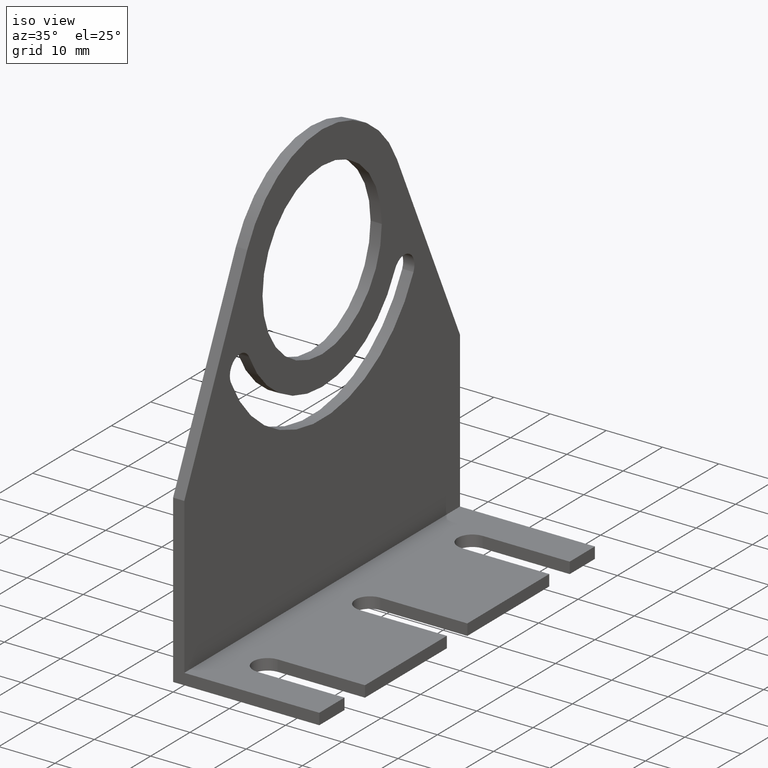
[diagram: clean part render]
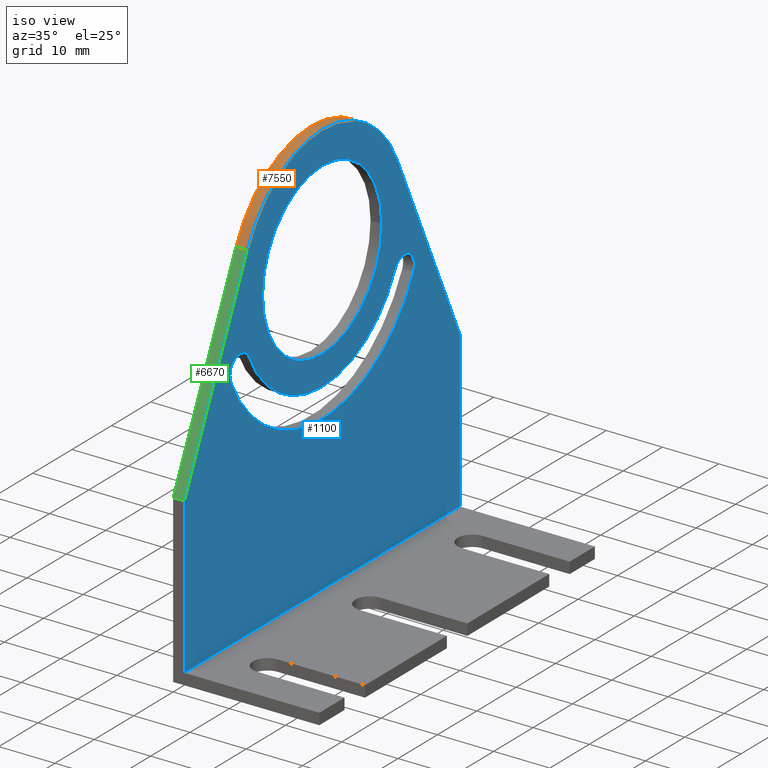
[diagram: same view with three faces highlighted in distinct colors, each labeled with its STEP entity id]
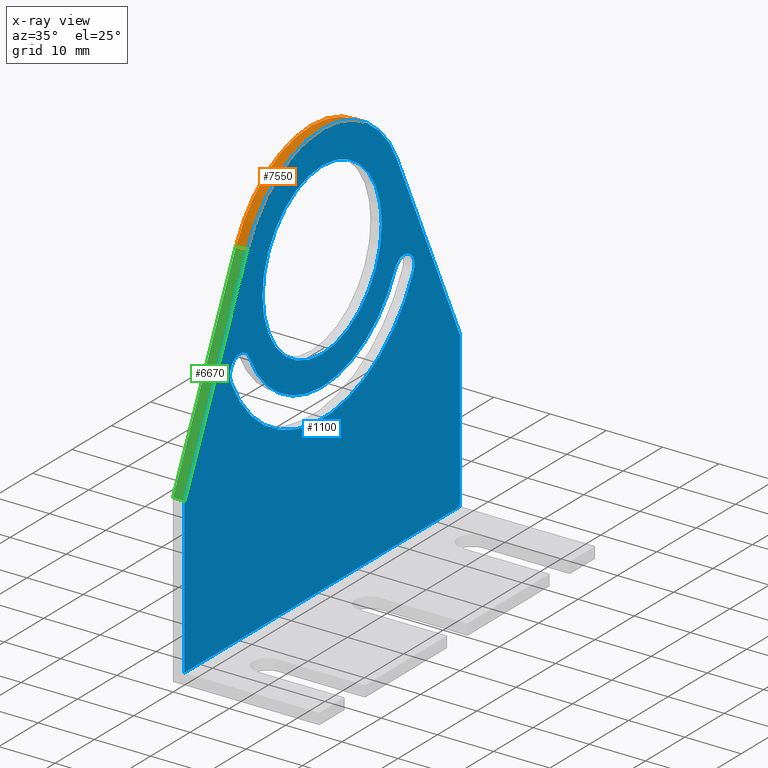
[diagram: x-ray of the same camera — body ghosted, the three highlighted faces saturated]
A machine part, iso view with three faces highlighted in distinct colors.
The next image is the same camera in x-ray (body ghosted, the three faces saturated) — at least one of them is partly hidden behind the body in this view.
Their STEP definitions:

[orange] entity #7550 — the highlighted cylindrical surface (partial cylindrical patch) has radius 21 mm, axis along (-1, 0, 0).
#590=CARTESIAN_POINT('',(0.,0.,2.));
#600=DIRECTION('',(0.,0.,1.));
#610=DIRECTION('',(0.906307787036637,0.422618261740727,0.));
#620=AXIS2_PLACEMENT_3D('',#590,#600,#610);
#630=CIRCLE('',#620,21.);
#640=CARTESIAN_POINT('',(19.0324635277695,8.87498349655499,2.));
#650=VERTEX_POINT('',#640);
#660=CARTESIAN_POINT('',(-19.0324635277694,8.87498349655527,2.));
#670=VERTEX_POINT('',#660);
#680=EDGE_CURVE('',#650,#670,#630,.T.);
#2270=CARTESIAN_POINT('',(19.0324635277695,8.87498349655499,0.));
#2280=VERTEX_POINT('',#2270);
#2310=CARTESIAN_POINT('',(0.,0.,0.));
#2320=DIRECTION('',(0.,0.,-1.));
#2330=DIRECTION('',(-0.906307787036624,0.422618261740756,0.));
#2340=AXIS2_PLACEMENT_3D('',#2310,#2320,#2330);
#2350=CIRCLE('',#2340,21.);
#2360=CARTESIAN_POINT('',(-19.0324635277694,8.87498349655527,0.));
#2370=VERTEX_POINT('',#2360);
#2380=EDGE_CURVE('',#2370,#2280,#2350,.T.);
#5160=CARTESIAN_POINT('',(19.0324635277696,8.8749834965547,2.));
#5170=DIRECTION('',(0.,0.,-1.));
#5180=VECTOR('',#5170,1.);
#5190=LINE('',#5160,#5180);
#5200=EDGE_CURVE('',#650,#2280,#5190,.T.);
#6560=CARTESIAN_POINT('',(-19.0324635277697,8.87498349655467,0.));
#6570=DIRECTION('',(0.,0.,1.));
#6580=VECTOR('',#6570,1.);
#6590=LINE('',#6560,#6580);
#6600=EDGE_CURVE('',#2370,#670,#6590,.T.);
#7440=CARTESIAN_POINT('',(0.,0.,2.));
#7450=DIRECTION('',(0.,0.,-1.));
#7460=DIRECTION('',(-1.,0.,0.));
#7470=AXIS2_PLACEMENT_3D('',#7440,#7450,#7460);
#7480=CYLINDRICAL_SURFACE('',#7470,21.);
#7490=ORIENTED_EDGE('',*,*,#5200,.T.);
#7500=ORIENTED_EDGE('',*,*,#680,.F.);
#7510=ORIENTED_EDGE('',*,*,#6600,.T.);
#7520=ORIENTED_EDGE('',*,*,#2380,.F.);
#7530=EDGE_LOOP('',(#7520,#7510,#7500,#7490));
#7540=FACE_OUTER_BOUND('',#7530,.T.);
#7550=ADVANCED_FACE('',(#7540),#7480,.T.);

[blue] entity #1100 — the highlighted planar face has unit normal (-1, 0, 0).
#10=CARTESIAN_POINT('',(0.,0.,2.));
#20=DIRECTION('',(0.,0.,-1.));
#30=DIRECTION('',(-1.,0.,0.));
#40=AXIS2_PLACEMENT_3D('',#10,#20,#30);
#50=PLANE('',#40);
#60=CARTESIAN_POINT('',(0.,0.,2.));
#70=DIRECTION('',(0.,0.,-1.));
#80=DIRECTION('',(-1.,-1.22839718603489E-16,0.));
#90=AXIS2_PLACEMENT_3D('',#60,#70,#80);
#100=CIRCLE('',#90,15.15);
#110=CARTESIAN_POINT('',(15.15,1.85533990070824E-15,2.));
#120=VERTEX_POINT('',#110);
#130=CARTESIAN_POINT('',(-15.15,0.,2.));
#140=VERTEX_POINT('',#130);
#150=EDGE_CURVE('',#120,#140,#100,.T.);
#160=ORIENTED_EDGE('',*,*,#150,.T.);
#170=EDGE_CURVE('',#140,#120,#100,.T.);
#180=ORIENTED_EDGE('',*,*,#170,.T.);
#190=EDGE_LOOP('',(#180,#160));
#200=FACE_BOUND('',#190,.T.);
#210=CARTESIAN_POINT('',(0.,0.,2.));
#220=DIRECTION('',(0.,0.,1.));
#230=DIRECTION('',(-0.906307787036631,-0.42261826174074,0.));
#240=AXIS2_PLACEMENT_3D('',#210,#220,#230);
#250=CIRCLE('',#240,20.4);
#260=CARTESIAN_POINT('',(-18.4886788555475,-8.6214125395107,2.));
#270=VERTEX_POINT('',#260);
#280=CARTESIAN_POINT('',(18.4886788555478,-8.62141253950999,2.));
#290=VERTEX_POINT('',#280);
#300=EDGE_CURVE('',#270,#290,#250,.T.);
#310=ORIENTED_EDGE('',*,*,#300,.T.);
#320=CARTESIAN_POINT('',(-20.845079101843,-9.72022002003609,2.));
#330=DIRECTION('',(0.,0.,-1.));
#340=DIRECTION('',(-0.906307787036682,-0.422618261740631,0.));
#350=AXIS2_PLACEMENT_3D('',#320,#330,#340);
#360=CIRCLE('',#350,2.6);
#370=CARTESIAN_POINT('',(-23.2014793481383,-10.8190275005618,2.));
#380=VERTEX_POINT('',#370);
#390=EDGE_CURVE('',#380,#270,#360,.T.);
#400=ORIENTED_EDGE('',*,*,#390,.T.);
#410=CARTESIAN_POINT('',(0.,0.,2.));
#420=DIRECTION('',(0.,0.,-1.));
#430=DIRECTION('',(0.906307787036644,-0.422618261740712,0.));
#440=AXIS2_PLACEMENT_3D('',#410,#420,#430);
#450=CIRCLE('',#440,25.6);
#460=CARTESIAN_POINT('',(23.2014793481381,-10.8190275005621,2.));
#470=VERTEX_POINT('',#460);
#480=EDGE_CURVE('',#470,#380,#450,.T.);
#490=ORIENTED_EDGE('',*,*,#480,.T.);
#500=CARTESIAN_POINT('',(20.8450791018429,-9.7202200200361,2.));
#510=DIRECTION('',(0.,0.,-1.));
#520=DIRECTION('',(-0.90630778703655,0.422618261740914,0.));
#530=AXIS2_PLACEMENT_3D('',#500,#510,#520);
#540=CIRCLE('',#530,2.59999999999999);
#550=EDGE_CURVE('',#290,#470,#540,.T.);
#560=ORIENTED_EDGE('',*,*,#550,.T.);
#570=EDGE_LOOP('',(#560,#490,#400,#310));
#580=FACE_BOUND('',#570,.T.);
#590=CARTESIAN_POINT('',(0.,0.,2.));
#600=DIRECTION('',(0.,0.,1.));
#610=DIRECTION('',(0.906307787036637,0.422618261740727,0.));
#620=AXIS2_PLACEMENT_3D('',#590,#600,#610);
#630=CIRCLE('',#620,21.);
#640=CARTESIAN_POINT('',(19.0324635277695,8.87498349655499,2.));
#650=VERTEX_POINT('',#640);
#660=CARTESIAN_POINT('',(-19.0324635277694,8.87498349655527,2.));
#670=VERTEX_POINT('',#660);
#680=EDGE_CURVE('',#650,#670,#630,.T.);
#690=ORIENTED_EDGE('',*,*,#680,.T.);
#700=CARTESIAN_POINT('',(34.5315389351836,-24.3628909761442,2.));
#710=DIRECTION('',(-0.422618261740698,0.90630778703665,0.));
#720=VECTOR('',#710,1.);
#730=LINE('',#700,#720);
#740=CARTESIAN_POINT('',(35.,-25.3675089716322,2.));
#750=VERTEX_POINT('',#740);
#760=EDGE_CURVE('',#750,#650,#730,.T.);
#770=ORIENTED_EDGE('',*,*,#760,.T.);
#780=CARTESIAN_POINT('',(35.,-51.,2.));
#790=DIRECTION('',(0.,1.,0.));
#800=VECTOR('',#790,1.);
#810=LINE('',#780,#800);
#820=CARTESIAN_POINT('',(35.,-53.,2.));
#830=VERTEX_POINT('',#820);
#840=EDGE_CURVE('',#830,#750,#810,.T.);
#850=ORIENTED_EDGE('',*,*,#840,.T.);
#860=CARTESIAN_POINT('',(0.,-53.,2.));
#870=DIRECTION('',(1.,0.,0.));
#880=VECTOR('',#870,1.);
#890=LINE('',#860,#880);
#900=CARTESIAN_POINT('',(-35.,-53.,2.));
#910=VERTEX_POINT('',#900);
#920=EDGE_CURVE('',#910,#830,#890,.T.);
#930=ORIENTED_EDGE('',*,*,#920,.T.);
#940=CARTESIAN_POINT('',(-35.,-26.4759822848468,2.));
#950=DIRECTION('',(0.,-1.,0.));
#960=VECTOR('',#950,1.);
#970=LINE('',#940,#960);
#980=CARTESIAN_POINT('',(-35.,-25.3675089716321,2.));
#990=VERTEX_POINT('',#980);
#1000=EDGE_CURVE('',#990,#910,#970,.T.);
#1010=ORIENTED_EDGE('',*,*,#1000,.T.);
#1020=CARTESIAN_POINT('',(-19.032463527769,8.87498349655582,2.));
#1030=DIRECTION('',(-0.422618261740702,-0.906307787036649,0.));
#1040=VECTOR('',#1030,1.);
#1050=LINE('',#1020,#1040);
#1060=EDGE_CURVE('',#670,#990,#1050,.T.);
#1070=ORIENTED_EDGE('',*,*,#1060,.T.);
#1080=EDGE_LOOP('',(#1070,#1010,#930,#850,#770,#690));
#1090=FACE_OUTER_BOUND('',#1080,.T.);
#1100=ADVANCED_FACE('',(#200,#580,#1090),#50,.F.);

[green] entity #6670 — the highlighted planar face has unit normal (0, -0.9063, 0.4226).
#660=CARTESIAN_POINT('',(-19.0324635277694,8.87498349655527,2.));
#670=VERTEX_POINT('',#660);
#980=CARTESIAN_POINT('',(-35.,-25.3675089716321,2.));
#990=VERTEX_POINT('',#980);
#1020=CARTESIAN_POINT('',(-19.032463527769,8.87498349655582,2.));
#1030=DIRECTION('',(-0.422618261740702,-0.906307787036649,0.));
#1040=VECTOR('',#1030,1.);
#1050=LINE('',#1020,#1040);
#1060=EDGE_CURVE('',#670,#990,#1050,.T.);
#2360=CARTESIAN_POINT('',(-19.0324635277694,8.87498349655527,0.));
#2370=VERTEX_POINT('',#2360);
#2400=CARTESIAN_POINT('',(-34.5315389351832,-24.3628909761433,0.));
#2410=DIRECTION('',(0.422618261740702,0.906307787036649,0.));
#2420=VECTOR('',#2410,1.);
#2430=LINE('',#2400,#2420);
#2440=CARTESIAN_POINT('',(-35.,-25.3675089716321,0.));
#2450=VERTEX_POINT('',#2440);
#2460=EDGE_CURVE('',#2450,#2370,#2430,.T.);
#2990=CARTESIAN_POINT('',(-35.,-25.3675089716321,0.));
#3000=DIRECTION('',(0.,0.,1.));
#3010=VECTOR('',#3000,1.);
#3020=LINE('',#2990,#3010);
#3030=EDGE_CURVE('',#2450,#990,#3020,.T.);
#6510=CARTESIAN_POINT('',(-35.,-25.3675089716321,2.));
#6520=DIRECTION('',(-0.90630778703665,0.422618261740699,0.));
#6530=DIRECTION('',(-0.422618261740699,-0.90630778703665,0.));
#6540=AXIS2_PLACEMENT_3D('',#6510,#6520,#6530);
#6550=PLANE('',#6540);
#6560=CARTESIAN_POINT('',(-19.0324635277697,8.87498349655467,0.));
#6570=DIRECTION('',(0.,0.,1.));
#6580=VECTOR('',#6570,1.);
#6590=LINE('',#6560,#6580);
#6600=EDGE_CURVE('',#2370,#670,#6590,.T.);
#6610=ORIENTED_EDGE('',*,*,#6600,.F.);
#6620=ORIENTED_EDGE('',*,*,#1060,.F.);
#6630=ORIENTED_EDGE('',*,*,#3030,.T.);
#6640=ORIENTED_EDGE('',*,*,#2460,.F.);
#6650=EDGE_LOOP('',(#6640,#6630,#6620,#6610));
#6660=FACE_OUTER_BOUND('',#6650,.T.);
#6670=ADVANCED_FACE('',(#6660),#6550,.T.);